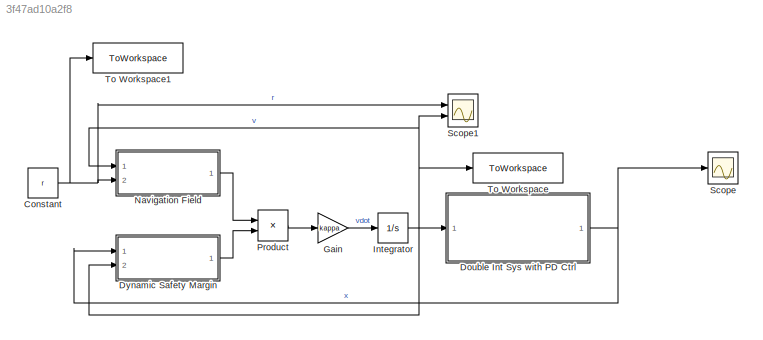
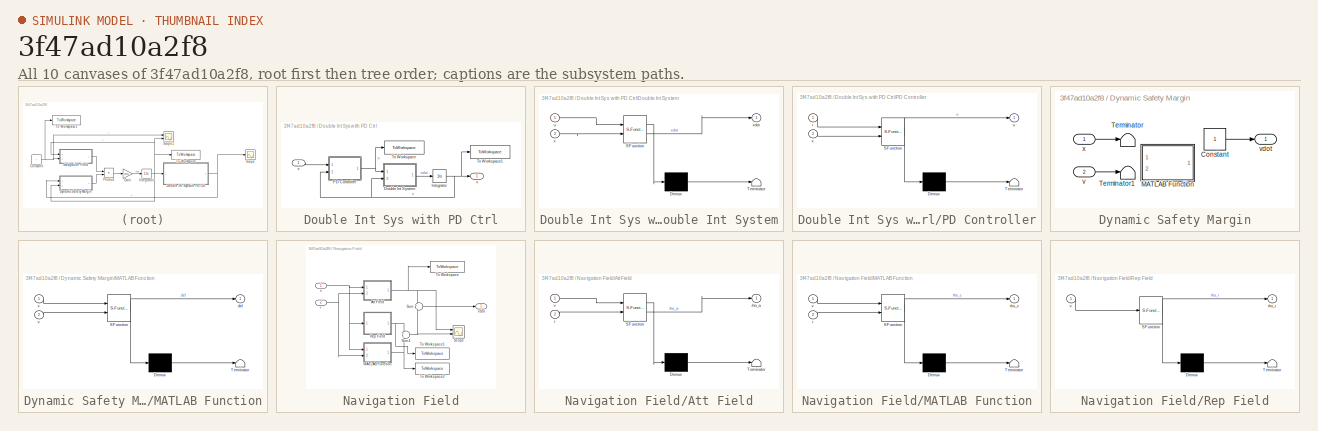
[diagram: thumbnail index - all 10 canvases of the model, root first then tree order]
MODEL slx_3f47ad10a2f8
KIND model
CONFIG AbsTol = auto
CONFIG EnableMultiTasking = off
CONFIG FixedStep = auto
CONFIG MaxStep = auto
CONFIG MinStep = auto
CONFIG RelTol = 1e-3
CONFIG SampleTimeConstraint = Unconstrained
CONFIG SolverName = VariableStepAuto
CONFIG StartTime = 0.0
CONFIG StopTime = TT
BLOCK [Constant] Constant
  SampleTime = Ts
  Value = r
BLOCK [SubSystem] Double Int Sys with PD Ctrl
  Ports = [1, 1]
  RequestExecContextInheritance = off
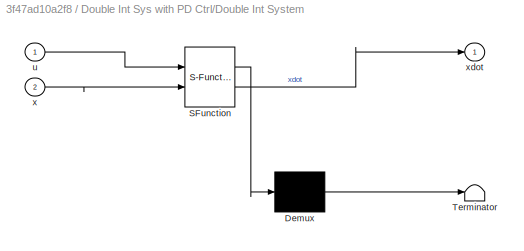
BLOCK [SubSystem] Double Int Sys with PD Ctrl/Double Int System
  ErrorFcn = Stateflow.Translate.translate
  PermitHierarchicalResolution = ExplicitOnly
  Ports = [2, 1]
  RequestExecContextInheritance = off
  SFBlockType = MATLAB Function
  TreatAsAtomicUnit = on
BLOCK [Demux] Double Int Sys with PD Ctrl/Double Int System/ Demux 
  Outputs = 1
  Ports = [1, 1]
BLOCK [S-Function] Double Int Sys with PD Ctrl/Double Int System/ SFunction 
  EnableBusSupport = on
  FunctionName = sf_sfun
  Parameters = A,B
  PortCounts = [2 2]
  Ports = [2, 2]
  SFcnIsStateOwnerBlock = off
  SFunctionDeploymentMode = off
  Tag = Stateflow S-Function 2
BLOCK [Terminator] Double Int Sys with PD Ctrl/Double Int System/ Terminator 
BLOCK [Inport] Double Int Sys with PD Ctrl/Double Int System/u
BLOCK [Inport] Double Int Sys with PD Ctrl/Double Int System/x
  Port = 2
BLOCK [Outport] Double Int Sys with PD Ctrl/Double Int System/xdot
BLOCK [Integrator] Double Int Sys with PD Ctrl/Integrator
  InitialCondition = x0
  Ports = [1, 1]
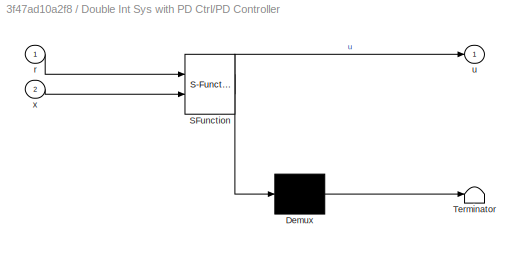
BLOCK [SubSystem] Double Int Sys with PD Ctrl/PD Controller
  ErrorFcn = Stateflow.Translate.translate
  PermitHierarchicalResolution = ExplicitOnly
  Ports = [2, 1]
  RequestExecContextInheritance = off
  SFBlockType = MATLAB Function
  TreatAsAtomicUnit = on
BLOCK [Demux] Double Int Sys with PD Ctrl/PD Controller/ Demux 
  Outputs = 1
  Ports = [1, 1]
BLOCK [S-Function] Double Int Sys with PD Ctrl/PD Controller/ SFunction 
  EnableBusSupport = on
  FunctionName = sf_sfun
  Parameters = Kd,Kp
  PortCounts = [2 2]
  Ports = [2, 2]
  SFcnIsStateOwnerBlock = off
  SFunctionDeploymentMode = off
  Tag = Stateflow S-Function 1
BLOCK [Terminator] Double Int Sys with PD Ctrl/PD Controller/ Terminator 
BLOCK [Inport] Double Int Sys with PD Ctrl/PD Controller/r
BLOCK [Outport] Double Int Sys with PD Ctrl/PD Controller/u
BLOCK [Inport] Double Int Sys with PD Ctrl/PD Controller/x
  Port = 2
BLOCK [ToWorkspace] Double Int Sys with PD Ctrl/To Workspace
  FixptAsFi = on
  MaxDataPoints = inf
  Ports = [1]
  SampleTime = -1
  SaveFormat = Timeseries
  VariableName = u
BLOCK [ToWorkspace] Double Int Sys with PD Ctrl/To Workspace1
  FixptAsFi = on
  MaxDataPoints = inf
  Ports = [1]
  SampleTime = -1
  SaveFormat = Timeseries
  VariableName = x
BLOCK [Inport] Double Int Sys with PD Ctrl/v
BLOCK [Outport] Double Int Sys with PD Ctrl/x
BLOCK [SubSystem] Dynamic Safety Margin
  Ports = [2, 1]
  RequestExecContextInheritance = off
BLOCK [Constant] Dynamic Safety Margin/Constant
BLOCK [SubSystem] Dynamic Safety Margin/MATLAB Function
  Commented = on
  ErrorFcn = Stateflow.Translate.translate
  PermitHierarchicalResolution = ExplicitOnly
  Ports = [2, 1]
  RequestExecContextInheritance = off
  SFBlockType = MATLAB Function
  TreatAsAtomicUnit = on
BLOCK [Demux] Dynamic Safety Margin/MATLAB Function/ Demux 
  Outputs = 1
  Ports = [1, 1]
BLOCK [S-Function] Dynamic Safety Margin/MATLAB Function/ SFunction 
  EnableBusSupport = on
  FunctionName = sf_sfun
  PortCounts = [2 2]
  Ports = [2, 2]
  SFcnIsStateOwnerBlock = off
  SFunctionDeploymentMode = off
  Tag = Stateflow S-Function 5
BLOCK [Terminator] Dynamic Safety Margin/MATLAB Function/ Terminator 
BLOCK [Outport] Dynamic Safety Margin/MATLAB Function/del
BLOCK [Inport] Dynamic Safety Margin/MATLAB Function/v
  Port = 2
BLOCK [Inport] Dynamic Safety Margin/MATLAB Function/x
BLOCK [Terminator] Dynamic Safety Margin/Terminator
BLOCK [Terminator] Dynamic Safety Margin/Terminator1
BLOCK [Inport] Dynamic Safety Margin/v
  Port = 2
BLOCK [Outport] Dynamic Safety Margin/vdot
BLOCK [Inport] Dynamic Safety Margin/x
BLOCK [Gain] Gain
  Gain = kappa
BLOCK [Integrator] Integrator
  InitialCondition = v0
  Ports = [1, 1]
BLOCK [SubSystem] Navigation Field
  Ports = [2, 1]
  RequestExecContextInheritance = off
BLOCK [SubSystem] Navigation Field/Att Field
  ErrorFcn = Stateflow.Translate.translate
  PermitHierarchicalResolution = ExplicitOnly
  Ports = [2, 1]
  RequestExecContextInheritance = off
  SFBlockType = MATLAB Function
  TreatAsAtomicUnit = on
BLOCK [Demux] Navigation Field/Att Field/ Demux 
  Outputs = 1
  Ports = [1, 1]
BLOCK [S-Function] Navigation Field/Att Field/ SFunction 
  EnableBusSupport = on
  FunctionName = sf_sfun
  Parameters = eta
  PortCounts = [2 2]
  Ports = [2, 2]
  SFcnIsStateOwnerBlock = off
  SFunctionDeploymentMode = off
  Tag = Stateflow S-Function 3
BLOCK [Terminator] Navigation Field/Att Field/ Terminator 
BLOCK [Inport] Navigation Field/Att Field/r
  Port = 2
BLOCK [Outport] Navigation Field/Att Field/rho_a
BLOCK [Inport] Navigation Field/Att Field/v
BLOCK [SubSystem] Navigation Field/MATLAB Function
  ErrorFcn = Stateflow.Translate.translate
  PermitHierarchicalResolution = ExplicitOnly
  Ports = [2, 1]
  RequestExecContextInheritance = off
  SFBlockType = MATLAB Function
  TreatAsAtomicUnit = on
BLOCK [Demux] Navigation Field/MATLAB Function/ Demux 
  Outputs = 1
  Ports = [1, 1]
BLOCK [S-Function] Navigation Field/MATLAB Function/ SFunction 
  EnableBusSupport = on
  FunctionName = sf_sfun
  Parameters = constr
  PortCounts = [2 2]
  Ports = [2, 2]
  SFcnIsStateOwnerBlock = off
  SFunctionDeploymentMode = off
  Tag = Stateflow S-Function 6
BLOCK [Terminator] Navigation Field/MATLAB Function/ Terminator 
BLOCK [Inport] Navigation Field/MATLAB Function/r
  Port = 2
BLOCK [Outport] Navigation Field/MATLAB Function/rho_c
BLOCK [Inport] Navigation Field/MATLAB Function/v
BLOCK [SubSystem] Navigation Field/Rep Field
  ErrorFcn = Stateflow.Translate.translate
  PermitHierarchicalResolution = ExplicitOnly
  Ports = [1, 1]
  RequestExecContextInheritance = off
  SFBlockType = MATLAB Function
  TreatAsAtomicUnit = on
BLOCK [Demux] Navigation Field/Rep Field/ Demux 
  Outputs = 1
  Ports = [1, 1]
BLOCK [S-Function] Navigation Field/Rep Field/ SFunction 
  EnableBusSupport = on
  FunctionName = sf_sfun
  Parameters = constr,delta,zeta
  PortCounts = [1 2]
  Ports = [1, 2]
  SFcnIsStateOwnerBlock = off
  SFunctionDeploymentMode = off
  Tag = Stateflow S-Function 4
BLOCK [Terminator] Navigation Field/Rep Field/ Terminator 
BLOCK [Outport] Navigation Field/Rep Field/rho_r
BLOCK [Inport] Navigation Field/Rep Field/v
BLOCK [Scope] Navigation Field/Scope
  Floating = off
  NumInputPorts = 2
  Ports = [2]
  ScopeSpecificationString = Simulink.scopes.TimeScopeBlockCfg('CurrentConfiguration', extmgr.ConfigurationSet(extmgr.Configuration('Core','General UI',true),extmgr.Configuration('Core','Source UI',true),extmgr.Configuration('Sources','WiredSimulink',true,'DataLoggingVariableName','ScopeData1'),extmgr.Configuration('Visuals','Time Domain',true,'SerializedDisplays',{struct('MinYLimReal','-1.0066','MaxYLimReal','1.19843','YLabe...<+1494ch>
BLOCK [Sum] Navigation Field/Sum
  Inputs = +|+
  Ports = [2, 1]
BLOCK [Sum] Navigation Field/Sum1
  Inputs = +|+
  Ports = [2, 1]
BLOCK [ToWorkspace] Navigation Field/To Workspace
  FixptAsFi = on
  MaxDataPoints = inf
  Ports = [1]
  SampleTime = -1
  SaveFormat = Timeseries
  VariableName = rho_att
BLOCK [ToWorkspace] Navigation Field/To Workspace1
  FixptAsFi = on
  MaxDataPoints = inf
  Ports = [1]
  SampleTime = -1
  SaveFormat = Timeseries
  VariableName = rho_rep_wall
BLOCK [ToWorkspace] Navigation Field/To Workspace2
  FixptAsFi = on
  MaxDataPoints = inf
  Ports = [1]
  SampleTime = -1
  SaveFormat = Timeseries
  VariableName = rho_rep_corr
BLOCK [Inport] Navigation Field/r
  Port = 2
BLOCK [Inport] Navigation Field/v
BLOCK [Outport] Navigation Field/vdot
BLOCK [Product] Product
  Ports = [2, 1]
BLOCK [Scope] Scope
  Floating = off
  NumInputPorts = 1
  Ports = [1]
  ScopeSpecificationString = Simulink.scopes.TimeScopeBlockCfg('CurrentConfiguration', extmgr.ConfigurationSet(extmgr.Configuration('Core','General UI',true),extmgr.Configuration('Core','Source UI',true),extmgr.Configuration('Sources','WiredSimulink',true),extmgr.Configuration('Visuals','Time Domain',true,'SerializedDisplays',{struct('MinYLimReal','-7.27621','MaxYLimReal','16.07042','YLabelReal','','MinYLimMag','0.00000','Max...<+1434ch>
BLOCK [Scope] Scope1
  Floating = off
  NumInputPorts = 2
  Ports = [2]
  ScopeSpecificationString = Simulink.scopes.TimeScopeBlockCfg('CurrentConfiguration', extmgr.ConfigurationSet(extmgr.Configuration('Core','General UI',true),extmgr.Configuration('Core','Source UI',true),extmgr.Configuration('Sources','WiredSimulink',true,'DataLoggingVariableName','ScopeData1'),extmgr.Configuration('Visuals','Time Domain',true,'SerializedDisplays',{struct('MinYLimReal','-0.75106','MaxYLimReal','6.75012','YLab...<+1378ch>
BLOCK [ToWorkspace] To Workspace
  FixptAsFi = on
  MaxDataPoints = inf
  Ports = [1]
  SampleTime = -1
  SaveFormat = Timeseries
  VariableName = v
BLOCK [ToWorkspace] To Workspace1
  FixptAsFi = on
  MaxDataPoints = inf
  Ports = [1]
  SampleTime = -1
  SaveFormat = Timeseries
  VariableName = r
NET Constant:1 -> Navigation Field:2, Scope1:1, To Workspace1:1
LINE Double Int Sys with PD Ctrl/Double Int System:1 -> Double Int Sys with PD Ctrl/Integrator:1
NET Double Int Sys with PD Ctrl/Integrator:1 -> Double Int Sys with PD Ctrl/Double Int System:2, Double Int Sys with PD Ctrl/PD Controller:2, Double Int Sys with PD Ctrl/To Workspace1:1, Double Int Sys with PD Ctrl/x:1
NET Double Int Sys with PD Ctrl/PD Controller:1 -> Double Int Sys with PD Ctrl/Double Int System:1, Double Int Sys with PD Ctrl/To Workspace:1
LINE Double Int Sys with PD Ctrl/v:1 -> Double Int Sys with PD Ctrl/PD Controller:1
NET Double Int Sys with PD Ctrl:1 -> Dynamic Safety Margin:1, Scope:1
LINE Dynamic Safety Margin/Constant:1 -> Dynamic Safety Margin/vdot:1
LINE Dynamic Safety Margin/v:1 -> Dynamic Safety Margin/Terminator1:1
LINE Dynamic Safety Margin/x:1 -> Dynamic Safety Margin/Terminator:1
LINE Dynamic Safety Margin:1 -> Product:2
LINE Gain:1 -> Integrator:1
NET Integrator:1 -> Double Int Sys with PD Ctrl:1, Dynamic Safety Margin:2, Navigation Field:1, Scope1:2, To Workspace:1
NET Navigation Field/Att Field:1 -> Navigation Field/Scope:1, Navigation Field/Sum:1, Navigation Field/To Workspace:1
NET Navigation Field/MATLAB Function:1 -> Navigation Field/Sum1:2, Navigation Field/To Workspace2:1
NET Navigation Field/Rep Field:1 -> Navigation Field/Sum1:1, Navigation Field/To Workspace1:1
NET Navigation Field/Sum1:1 -> Navigation Field/Scope:2, Navigation Field/Sum:2
LINE Navigation Field/Sum:1 -> Navigation Field/vdot:1
NET Navigation Field/r:1 -> Navigation Field/Att Field:2, Navigation Field/MATLAB Function:2
NET Navigation Field/v:1 -> Navigation Field/Att Field:1, Navigation Field/MATLAB Function:1, Navigation Field/Rep Field:1
LINE Navigation Field:1 -> Product:1
LINE Product:1 -> Gain:1
note: NET lines group one-source signal fan-out (src -> all destinations, sorted); 1:1 wires keep LINE
CHART Double Int Sys with PD Ctrl/PD Controller states=1 transitions=1
  STATE_LABEL 'eML_blk_kernel()'
  STATE_LABEL 'SCRIPT:\nfunction u = fcn(r,x,Kp,Kd)\n\nu = [ - Kp*(x(1)-r(1)) - Kd*x(3) ;\n      - Kp*(x(2)-r(2)) - Kd*x(4) ];\n'
CHART Double Int Sys with PD Ctrl/Double Int System states=1 transitions=1
  STATE_LABEL 'eML_blk_kernel()'
  STATE_LABEL 'SCRIPT:\nfunction xdot = fcn(u,x,A, B)\n\nxdot = A*x + B*u;\n'
CHART Navigation Field/Att Field states=1 transitions=1
  STATE_LABEL 'eML_blk_kernel()'
  STATE_LABEL 'SCRIPT:\nfunction rho_a = fcn(v,r,eta)\n\nrho_a = (r-v) / max([norm(r-v), eta]);\n'
CHART Navigation Field/Rep Field states=1 transitions=1
  STATE_LABEL 'eML_blk_kernel()'
  STATE_LABEL "SCRIPT:\nfunction rho_r = fcn(v, constr, delta, zeta)\nrho_r = 0*v;\n\nfor i = 1:length(constr.b)\n\n    ci = constr.A(i,:)*v+constr.b(i);\n   Dci = constr.A(i,:)'/norm(constr.A(i,:));\n\n    rho_r = rho_r + min([max([(zeta-ci)/(zeta-delta), 0]), 1]) * Dci;\n\nend\n"
CHART Dynamic Safety Margin/MATLAB Function states=1 transitions=1
  STATE_LABEL 'eML_blk_kernel()'
  STATE_LABEL 'SCRIPT:\nfunction del = fcn(x,v)\n\ndel = 0*v;\n\nfor ii = 1:length(constr.b)\n\n    for tt = 1:DSM_TT\n        \n    end\n\n    del = min(del, )\nend\n\ndel = max([del,0]);\n'
CHART Navigation Field/MATLAB Function states=1 transitions=1
  STATE_LABEL 'eML_blk_kernel()'
  STATE_LABEL "SCRIPT:\nfunction rho_c = fcn(v, r, constr)\nrho_c = 0*v;\n\nfor i = 1:length(constr.b)\n    ci = constr.A(i,:)*v + constr.b(i);\n    Dci = constr.A(i,:)'/norm(constr.A(i,:));\n\n    rho_c = rho_c + max([0.99 - Dci'*((v-r)/norm(v-r)), 0]) * Dci;\nend\n\n"
CHART  states=0 transitions=0
CHART  states=0 transitions=0
CHART  states=0 transitions=0
CHART  states=0 transitions=0
CHART  states=0 transitions=0
CHART  states=0 transitions=0
